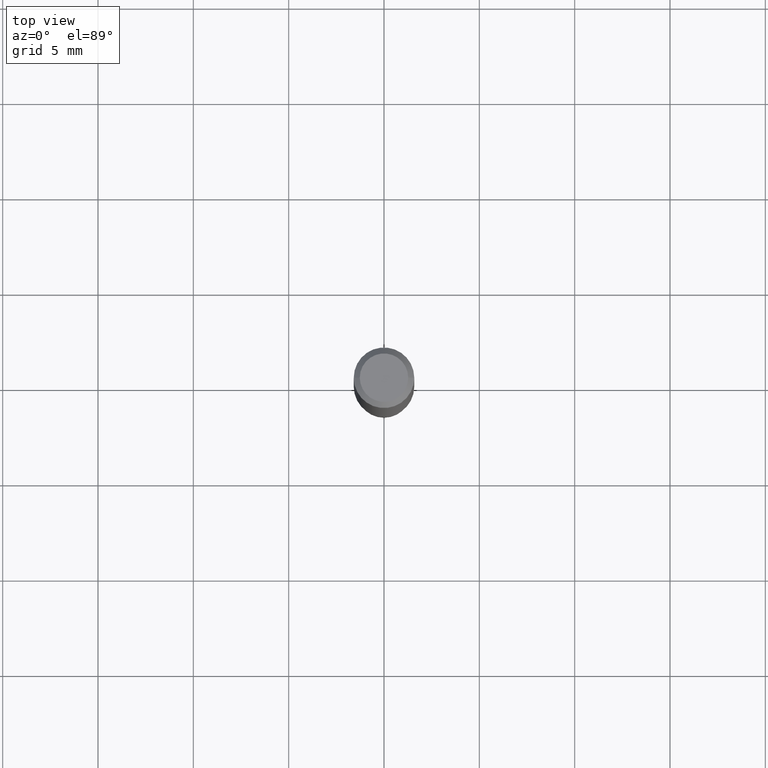
[diagram: clean part render]
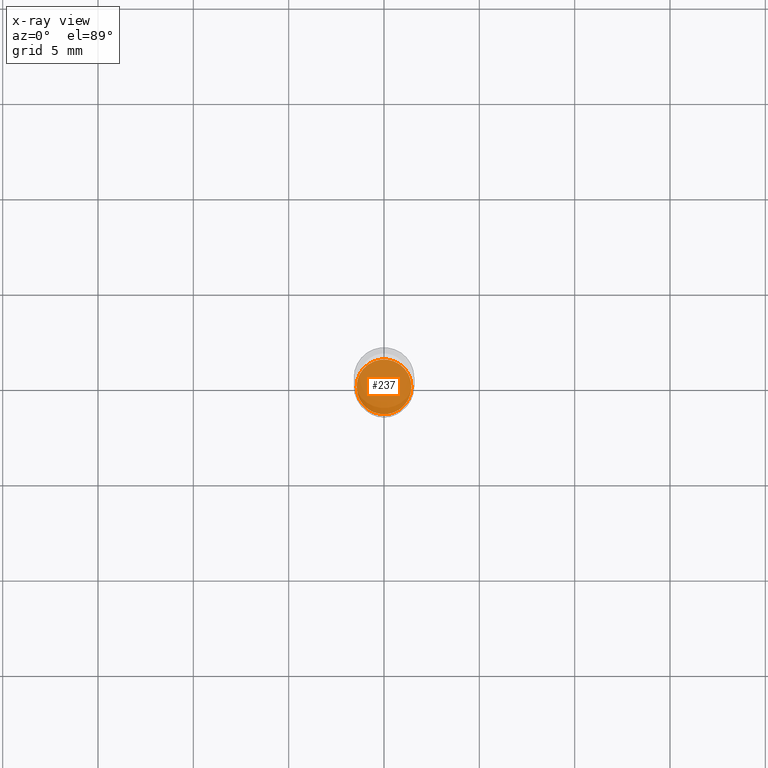
[diagram: x-ray — body ghosted, one internal face saturated and labeled with its STEP entity id]
A machine part, top view, then the same camera in x-ray: the body is ghosted and one INTERNAL B-rep face — a face not visible from any outside direction — is saturated and labeled: STEP entity #237.
In plain terms, the highlighted planar face has unit normal (-0, 0, 1).
Its self-contained STEP definition (entity closure, byte-faithful):
#3 = EDGE_CURVE ( 'NONE', #171, #19, #347, .T. ) ;
#10 = DIRECTION ( 'NONE',  ( 1.000000000000000000, -6.982962677686269077E-15, 0.000000000000000000 ) ) ;
#12 = CARTESIAN_POINT ( 'NONE',  ( -0.05659999999999999060, -3.435813057113132311E-15, -1.100000000000000089 ) ) ;
#19 = VERTEX_POINT ( 'NONE', #114 ) ;
#54 = ORIENTED_EDGE ( 'NONE', *, *, #314, .F. ) ;
#57 = ORIENTED_EDGE ( 'NONE', *, *, #3, .F. ) ;
#83 = CARTESIAN_POINT ( 'NONE',  ( 2.690015686803650369E-29, -3.840629472727460101E-15, -1.100000000000000089 ) ) ;
#96 = EDGE_LOOP ( 'NONE', ( #54, #57 ) ) ;
#114 = CARTESIAN_POINT ( 'NONE',  ( 0.05659999999999999060, -4.235865160284502709E-15, -1.100000000000000089 ) ) ;
#171 = VERTEX_POINT ( 'NONE', #12 ) ;
#200 = PLANE ( 'NONE',  #366 ) ;
#233 = AXIS2_PLACEMENT_3D ( 'NONE', #351, #312, #10 ) ;
#237 = ADVANCED_FACE ( 'NONE', ( #270 ), #200, .F. ) ;
#267 = DIRECTION ( 'NONE',  ( -2.445468806185136597E-29, 3.491481338843145583E-15, 1.000000000000000000 ) ) ;
#270 = FACE_OUTER_BOUND ( 'NONE', #96, .T. ) ;
#312 = DIRECTION ( 'NONE',  ( -2.445468806185136597E-29, 3.491481338843145583E-15, 1.000000000000000000 ) ) ;
#314 = EDGE_CURVE ( 'NONE', #19, #171, #445, .T. ) ;
#347 = CIRCLE ( 'NONE', #375, 0.05659999999999999060 ) ;
#351 = CARTESIAN_POINT ( 'NONE',  ( 2.690015686803650369E-29, -3.840629472727460101E-15, -1.100000000000000089 ) ) ;
#366 = AXIS2_PLACEMENT_3D ( 'NONE', #83, #429, #395 ) ;
#375 = AXIS2_PLACEMENT_3D ( 'NONE', #490, #267, #384 ) ;
#384 = DIRECTION ( 'NONE',  ( 1.000000000000000000, -6.982962677686269077E-15, 0.000000000000000000 ) ) ;
#395 = DIRECTION ( 'NONE',  ( 1.000000000000000000, -6.982962677686265922E-15, 4.876176775795935793E-29 ) ) ;
#429 = DIRECTION ( 'NONE',  ( -2.438088387897960049E-29, 3.491481338843145188E-15, 1.000000000000000000 ) ) ;
#445 = CIRCLE ( 'NONE', #233, 0.05659999999999999060 ) ;
#490 = CARTESIAN_POINT ( 'NONE',  ( 2.690015686803650369E-29, -3.840629472727460101E-15, -1.100000000000000089 ) ) ;